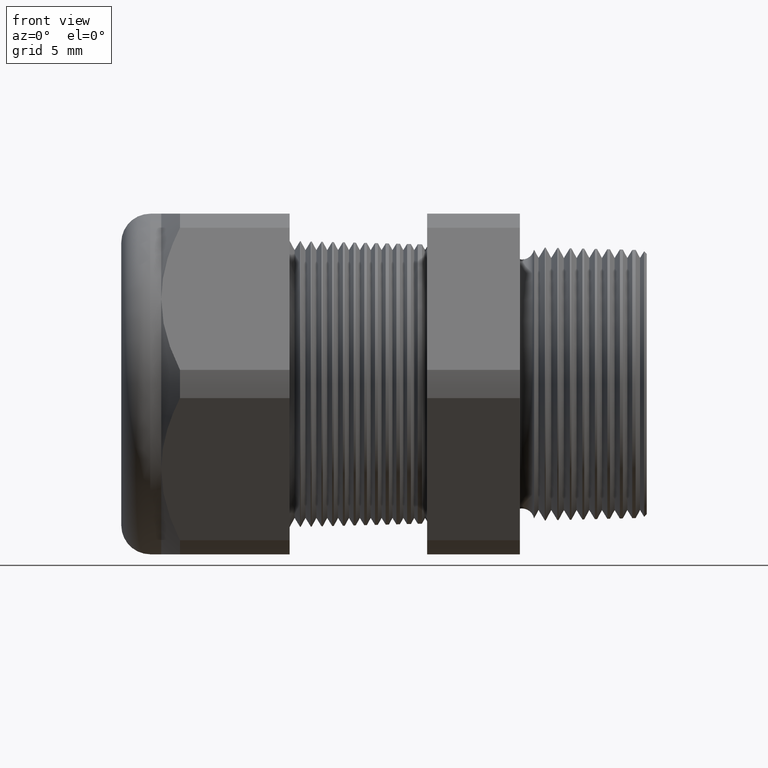
[diagram: clean part render]
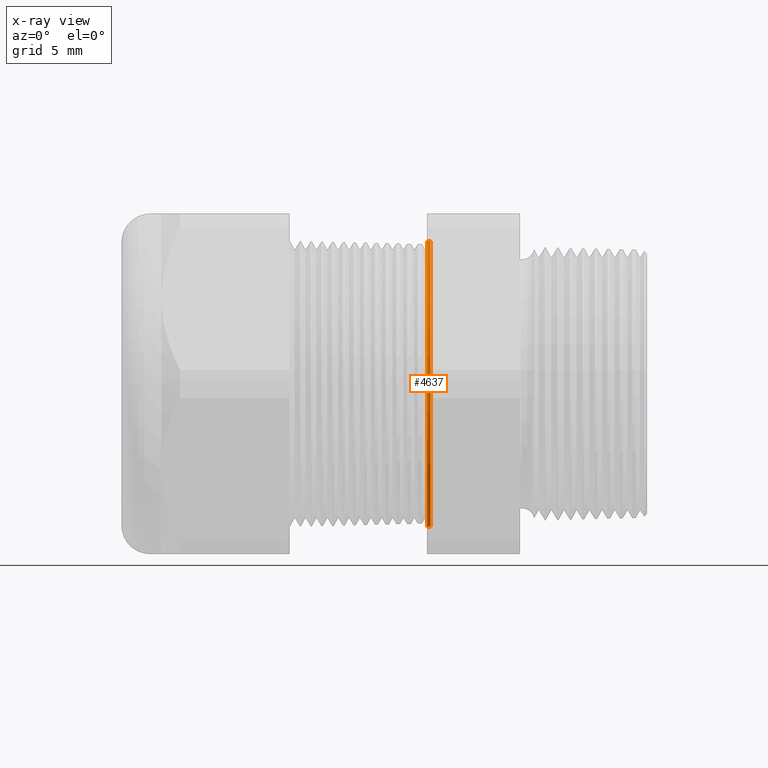
[diagram: x-ray — body ghosted, one internal face saturated and labeled with its STEP entity id]
A machine part, front view, then the same camera in x-ray: the body is ghosted and one INTERNAL B-rep face — a face not visible from any outside direction — is saturated and labeled: STEP entity #4637.
In plain terms, the highlighted conical surface has half-angle 1.5 deg.
Its self-contained STEP definition (entity closure, byte-faithful):
#15 = EDGE_CURVE ( 'NONE', #250, #79, #1123, .T. ) ;
#46 = ORIENTED_EDGE ( 'NONE', *, *, #15, .T. ) ;
#77 = ORIENTED_EDGE ( 'NONE', *, *, #78, .F. ) ;
#78 = EDGE_CURVE ( 'NONE', #4619, #79, #1223, .T. ) ;
#79 = VERTEX_POINT ( 'NONE', #1219 ) ;
#247 = EDGE_CURVE ( 'NONE', #4622, #250, #1559, .T. ) ;
#250 = VERTEX_POINT ( 'NONE', #1555 ) ;
#356 = ORIENTED_EDGE ( 'NONE', *, *, #247, .T. ) ;
#1120 = DIRECTION ( 'NONE',  ( 0.0000000000000000000, 0.0000000000000000000, 1.000000000000000000 ) ) ;
#1121 = DIRECTION ( 'NONE',  ( -1.000000000000000000, 0.0000000000000000000, 0.0000000000000000000 ) ) ;
#1122 = AXIS2_PLACEMENT_3D ( 'NONE', #1129, #1121, #1120 ) ;
#1123 = CIRCLE ( 'NONE', #1122, 0.3944886528701452800 ) ;
#1129 = CARTESIAN_POINT ( 'NONE',  ( -0.5659055118110234400, 0.0000000000000000000, 0.0000000000000000000 ) ) ;
#1219 = CARTESIAN_POINT ( 'NONE',  ( -0.5659055118110234400, 0.0000000000000000000, 0.3944886528701452300 ) ) ;
#1220 = DIRECTION ( 'NONE',  ( -0.9996573249755575900, 0.0000000000000000000, 0.02617694830786370200 ) ) ;
#1221 = VECTOR ( 'NONE', #1220, 39.37007874015748900 ) ;
#1222 = CARTESIAN_POINT ( 'NONE',  ( -0.5565754495825407900, 0.0000000000000000000, 0.3942443365923946100 ) ) ;
#1223 = LINE ( 'NONE', #1222, #1221 ) ;
#1555 = CARTESIAN_POINT ( 'NONE',  ( -0.5659055118110234400, 4.831092660373746600E-017, -0.3944886528701452300 ) ) ;
#1556 = DIRECTION ( 'NONE',  ( -0.9996573249755575900, 3.205751595667100700E-018, -0.02617694830786370200 ) ) ;
#1557 = VECTOR ( 'NONE', #1556, 39.37007874015748900 ) ;
#1558 = CARTESIAN_POINT ( 'NONE',  ( -0.5565754495825407900, 4.828100648898478500E-017, -0.3942443365923946100 ) ) ;
#1559 = LINE ( 'NONE', #1558, #1557 ) ;
#3498 = CARTESIAN_POINT ( 'NONE',  ( -0.5565754495825407900, 0.0000000000000000000, -0.3942443365923946100 ) ) ;
#3500 = CARTESIAN_POINT ( 'NONE',  ( -0.5565754495825407900, 4.828100648898477900E-017, 0.3942443365923946100 ) ) ;
#3534 = DIRECTION ( 'NONE',  ( 0.0000000000000000000, 0.0000000000000000000, -1.000000000000000000 ) ) ;
#3535 = DIRECTION ( 'NONE',  ( 1.000000000000000000, 0.0000000000000000000, 0.0000000000000000000 ) ) ;
#3536 = CARTESIAN_POINT ( 'NONE',  ( -0.5565754495825407900, 0.0000000000000000000, 0.0000000000000000000 ) ) ;
#3537 = AXIS2_PLACEMENT_3D ( 'NONE', #3536, #3535, #3534 ) ;
#3538 = CIRCLE ( 'NONE', #3537, 0.3942443365923946100 ) ;
#3540 = DIRECTION ( 'NONE',  ( 0.0000000000000000000, 0.0000000000000000000, 1.000000000000000000 ) ) ;
#3541 = DIRECTION ( 'NONE',  ( -1.000000000000000000, 0.0000000000000000000, 0.0000000000000000000 ) ) ;
#3542 = AXIS2_PLACEMENT_3D ( 'NONE', #3544, #3541, #3540 ) ;
#3543 = CONICAL_SURFACE ( 'NONE', #3542, 0.3942443365923946100, 0.02617993877990548700 ) ;
#3544 = CARTESIAN_POINT ( 'NONE',  ( -0.5565754495825407900, 0.0000000000000000000, 0.0000000000000000000 ) ) ;
#3545 = FACE_OUTER_BOUND ( 'NONE', #4631, .T. ) ;
#4619 = VERTEX_POINT ( 'NONE', #3500 ) ;
#4622 = VERTEX_POINT ( 'NONE', #3498 ) ;
#4630 = ORIENTED_EDGE ( 'NONE', *, *, #4639, .T. ) ;
#4631 = EDGE_LOOP ( 'NONE', ( #4630, #356, #46, #77 ) ) ;
#4637 = ADVANCED_FACE ( 'NONE', ( #3545 ), #3543, .F. ) ;
#4639 = EDGE_CURVE ( 'NONE', #4619, #4622, #3538, .T. ) ;